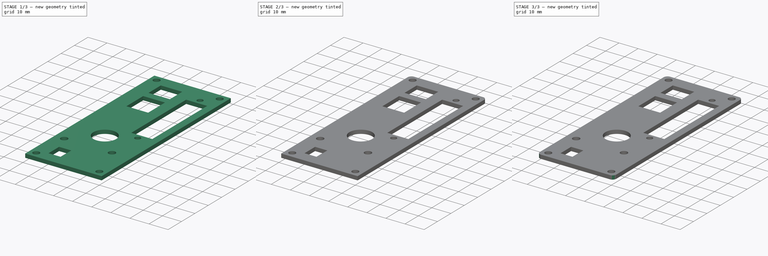
[diagram: build sequence overview — one tinted view per stage of 3, left to right]
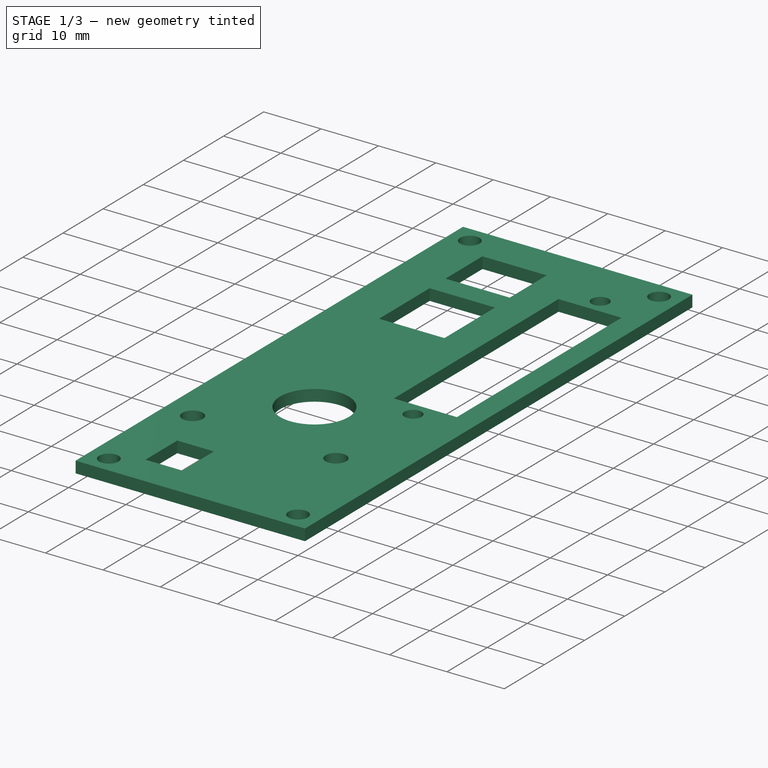
[diagram: stage 1 of 3 — iso view after this stage's code; geometry added in this stage tinted green]
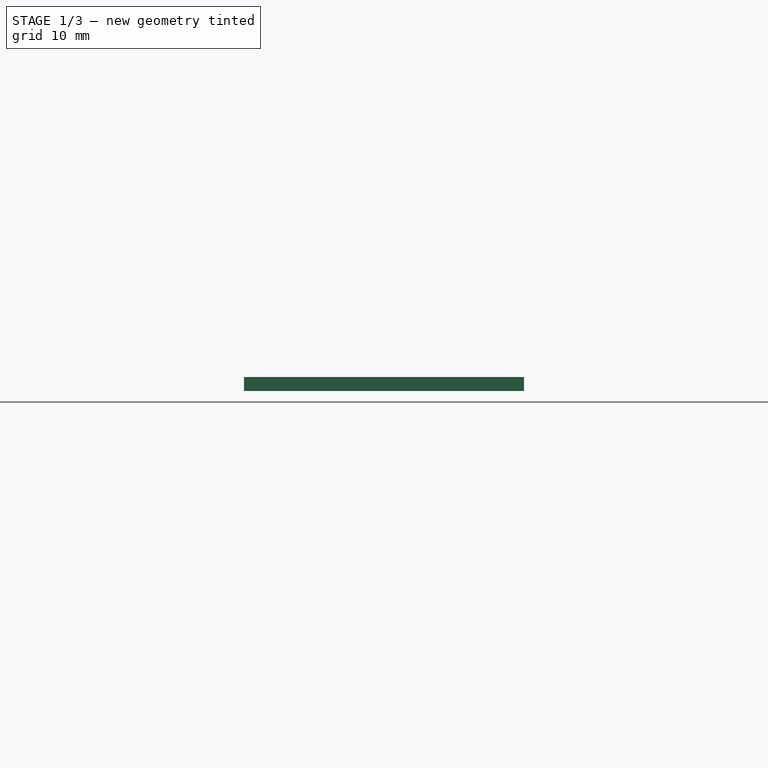
[diagram: stage 1 of 3 — front view after this stage's code; geometry added in this stage tinted green]
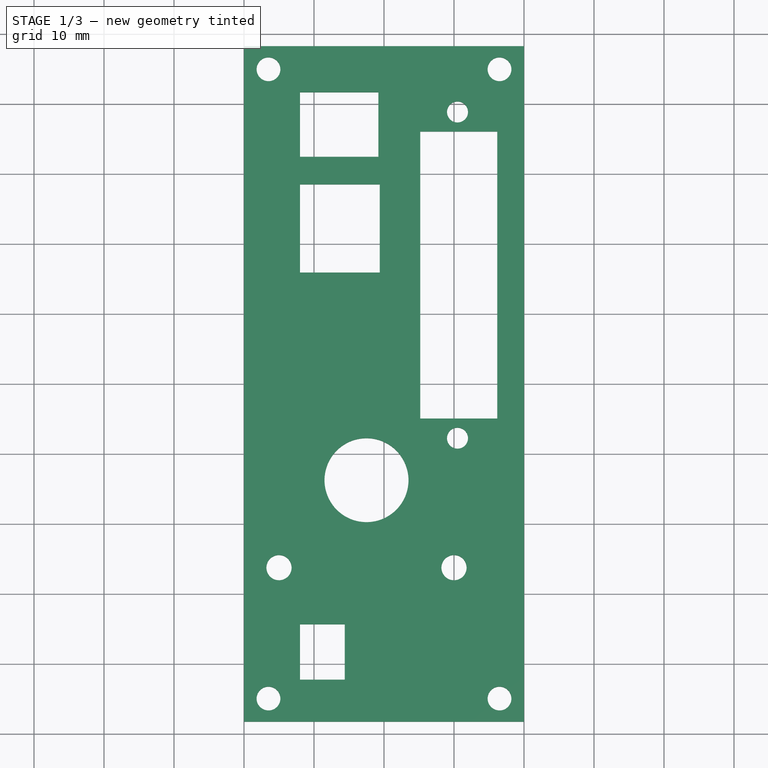
[diagram: stage 1 of 3 — top view after this stage's code; geometry added in this stage tinted green]
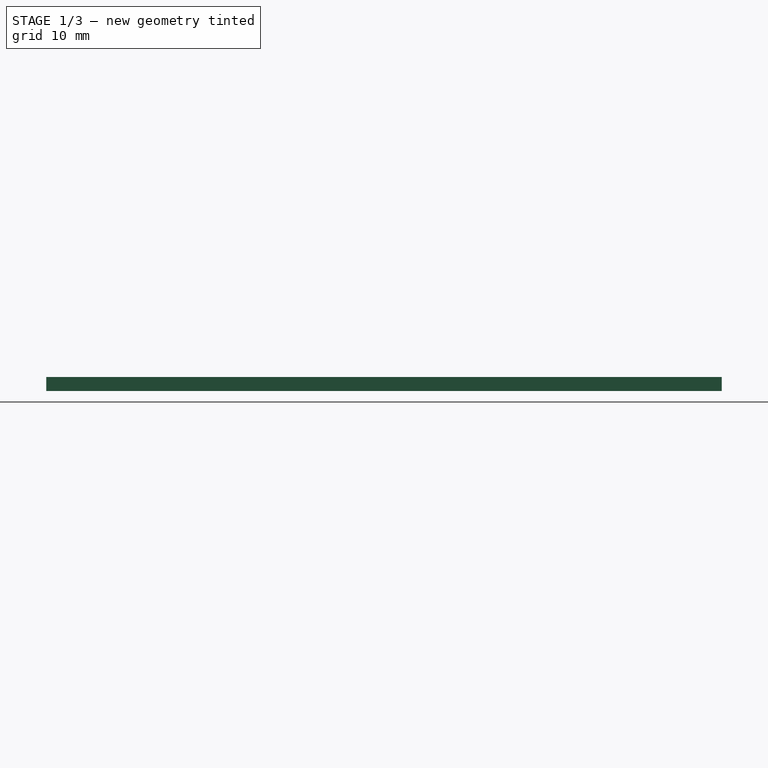
[diagram: stage 1 of 3 — right view after this stage's code; geometry added in this stage tinted green]
FCSTD DOCUMENT  (FreeCAD 0.18.4R)
Label: left_case
License: All rights reserved
LicenseURL: http://en.wikipedia.org/wiki/All_rights_reserved
objects: PartDesign::Fillet×4, Sketcher::SketchObject×2, PartDesign::Pad×1, PartDesign::Pocket×1, PartDesign::Body×1
note: 11 computed .brp shape members not serialized (recipe doc carries the construction recipe); baked Part::Feature solids carry a one-line shape summary decoded from their .brp

FEATURE [Sketcher::SketchObject] Sketch
  MapMode = 5
  Support = -> [XY_Plane]
  sketch-geometry (4):
    g0: LineSegment StartX=-20 StartY=48.25 StartZ=0 EndX=20 EndY=48.25 EndZ=0
    g1: LineSegment StartX=20 StartY=48.25 StartZ=0 EndX=20 EndY=-48.25 EndZ=0
    g2: LineSegment StartX=20 StartY=-48.25 StartZ=0 EndX=-20 EndY=-48.25 EndZ=0
    g3: LineSegment StartX=-20 StartY=-48.25 StartZ=0 EndX=-20 EndY=48.25 EndZ=0
  constraints (10):
    c: Coincident(g0,g1)
    c: Coincident(g1,g2)
    c: Coincident(g2,g3)
    c: Coincident(g3,g0)
    c: Horizontal(g2)
    c: Vertical(g1)
    c: DistanceX(g0,g0) = 40
    c: DistanceY(g3,g3) = 96.5
    c: Symmetric(g0,g0,g-2)
    c: Symmetric(g2,g0,g-1)
FEATURE [PartDesign::Pad] Pad
  Length = 2
  Length2 = 100
  Profile = -> Sketch
  Type = 0
FEATURE [Sketcher::SketchObject] Sketch001
  ExternalGeometry = -> [Pad]
  MapMode = 5
  Placement = pos=(0,0,2) rot=(0,0,1;0rad)
  Support = -> [Pad]
  sketch-geometry (25):
    g0: Circle CenterX=-16.5 CenterY=44.95 CenterZ=0 NormalX=0 NormalY=0 NormalZ=1 AngleXU=0 Radius=1.7
    g1: Circle CenterX=16.5 CenterY=44.95 CenterZ=0 NormalX=0 NormalY=0 NormalZ=1 AngleXU=0 Radius=1.7
    g2: Circle CenterX=-16.5 CenterY=-44.95 CenterZ=0 NormalX=0 NormalY=0 NormalZ=1 AngleXU=0 Radius=1.7
    g3: Circle CenterX=16.5 CenterY=-44.95 CenterZ=0 NormalX=0 NormalY=0 NormalZ=1 AngleXU=0 Radius=1.7
    g4: Circle CenterX=10.5 CenterY=38.85 CenterZ=0 NormalX=0 NormalY=0 NormalZ=1 AngleXU=0 Radius=1.5
    g5: Circle CenterX=10.5 CenterY=-7.75 CenterZ=0 NormalX=0 NormalY=0 NormalZ=1 AngleXU=0 Radius=1.5
    g6: LineSegment StartX=5.18 StartY=-4.95 StartZ=0 EndX=16.18 EndY=-4.95 EndZ=0
    g7: LineSegment StartX=16.18 StartY=-4.95 StartZ=0 EndX=16.18 EndY=36.05 EndZ=0
    g8: LineSegment StartX=16.18 StartY=36.05 StartZ=0 EndX=5.18 EndY=36.05 EndZ=0
    g9: LineSegment StartX=5.18 StartY=36.05 StartZ=0 EndX=5.18 EndY=-4.95 EndZ=0
    g10: LineSegment StartX=-12 StartY=32.4575 StartZ=0 EndX=-0.8 EndY=32.4575 EndZ=0
    g11: LineSegment StartX=-0.8 StartY=32.4575 StartZ=0 EndX=-0.8 EndY=41.6575 EndZ=0
    g12: LineSegment StartX=-0.8 StartY=41.6575 StartZ=0 EndX=-12 EndY=41.6575 EndZ=0
    g13: LineSegment StartX=-12 StartY=41.6575 StartZ=0 EndX=-12 EndY=32.4575 EndZ=0
    g14: LineSegment StartX=-12 StartY=15.9053 StartZ=0 EndX=-0.6 EndY=15.9053 EndZ=0
    g15: LineSegment StartX=-0.6 StartY=15.9053 StartZ=0 EndX=-0.6 EndY=28.5053 EndZ=0
    g16: LineSegment StartX=-0.6 StartY=28.5053 StartZ=0 EndX=-12 EndY=28.5053 EndZ=0
    g17: LineSegment StartX=-12 StartY=28.5053 StartZ=0 EndX=-12 EndY=15.9053 EndZ=0
    g18: Circle CenterX=-2.5 CenterY=-13.75 CenterZ=0 NormalX=0 NormalY=0 NormalZ=1 AngleXU=0 Radius=6
    g19: LineSegment StartX=-12 StartY=-42.25 StartZ=0 EndX=-5.6 EndY=-42.25 EndZ=0
    g20: LineSegment StartX=-5.6 StartY=-42.25 StartZ=0 EndX=-5.6 EndY=-34.35 EndZ=0
    g21: LineSegment StartX=-5.6 StartY=-34.35 StartZ=0 EndX=-12 EndY=-34.35 EndZ=0
    g22: LineSegment StartX=-12 StartY=-34.35 StartZ=0 EndX=-12 EndY=-42.25 EndZ=0
    g23: Circle CenterX=-15 CenterY=-26.25 CenterZ=0 NormalX=0 NormalY=0 NormalZ=1 AngleXU=0 Radius=1.8
    g24: Circle CenterX=10 CenterY=-26.25 CenterZ=0 NormalX=0 NormalY=0 NormalZ=1 AngleXU=0 Radius=1.8
  constraints (76):
    c: Distance(g0,g-3) = 3.3
    c: Distance(g0,g-4) = 3.5
    c: Radius(g0) = 1.7
    c: Radius(g1) = 1.7
    c: Radius(g3) = 1.7
    c: Radius(g2) = 1.7
    c: Distance(g2,g-4) = 3.5
    c: Distance(g2,g-6) = 3.3
    c: Distance(g3,g-5) = 3.5
    c: Distance(g3,g-6) = 3.3
    c: Distance(g1,g-5) = 3.5
    c: Distance(g-3) = 40
    c: Distance(g-3) = 40
    c: Distance(g1,g-3) = 3.3
    c: Radius(g4) = 1.5
    c: Radius(g5) = 1.5
    c: Coincident(g6,g7)
    c: Coincident(g7,g8)
    c: Coincident(g8,g9)
    c: Coincident(g9,g6)
    c: Horizontal(g6)
    c: DistanceY(g9,g9) = 41
    c: DistanceX(g8,g8) = 11
    c: Equal(g8,g6)
    c: Perpendicular(g9,g8)
    c: Distance(g5,g6) = 2.8
    c: Distance(g7,g-5) = 3.82
    c: Coincident(g10,g11)
    c: Coincident(g11,g12)
    c: Coincident(g12,g13)
    c: Coincident(g13,g10)
    c: Horizontal(g10)
    c: Horizontal(g12)
    c: Vertical(g11)
    c: Vertical(g13)
    c: Coincident(g14,g15)
    c: Coincident(g15,g16)
    c: Coincident(g16,g17)
    c: Coincident(g17,g14)
    c: Horizontal(g14)
    c: Horizontal(g16)
    c: Vertical(g15)
    c: Vertical(g17)
    c: DistanceX(g12,g12) = 11.2
    c: DistanceY(g11,g11) = 9.2
    c: DistanceX(g16,g16) = 11.4
    c: DistanceY(g15,g15) = 12.6
    c: Distance(g10,g-4) = 8
    c: Distance(g16,g-4) = 8
    c: Distance(g18,g-6) = 34.5
    c: Distance(g18,g-4) = 17.5
    c: Coincident(g19,g20)
    c: Coincident(g20,g21)
    c: Coincident(g21,g22)
    c: Coincident(g22,g19)
    c: Horizontal(g19)
    c: Horizontal(g21)
    c: Vertical(g20)
    c: Vertical(g22)
    c: Distance(g19,g-6) = 6
    c: Distance(g21,g-4) = 8
    c: DistanceX(g21,g21) = 6.4
    c: DistanceY(g20,g20) = 7.9
    c: Radius(g18) = 6
    c: Distance(g-3) = 40
    c: Distance(g4,g-3) = 9.4
    c: Distance(g4,g9) = 5.32
    c: Distance(g5,g9) = 5.32
    c: Horizontal(g23,g24)
    c: Radius(g23) = 1.8
    c: Radius(g24) = 1.8
    c: Distance(g23,g-4) = 5
    c: Distance(g23,g24) = 25
    c: Distance(g24,g-6) = 22
    c: Distance(g4,g8) = 2.8
    c: Distance(g5,g4) = 46.6
FEATURE [PartDesign::Pocket] Pocket
  BaseFeature = -> Pad
  Length = 5
  Length2 = 100
  Profile = -> Sketch001
  Type = 0
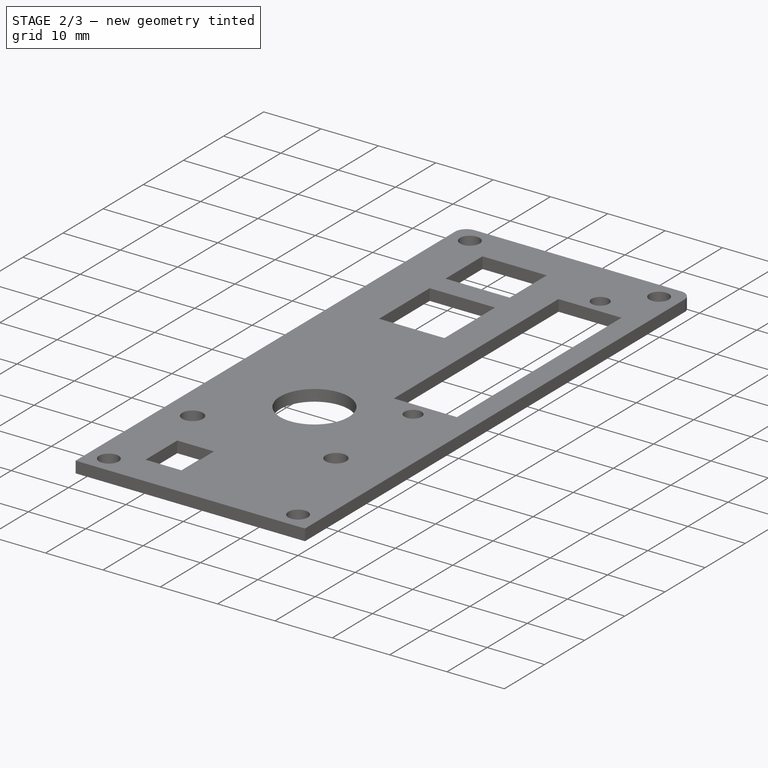
[diagram: stage 2 of 3 — iso view after this stage's code; geometry added in this stage tinted green]
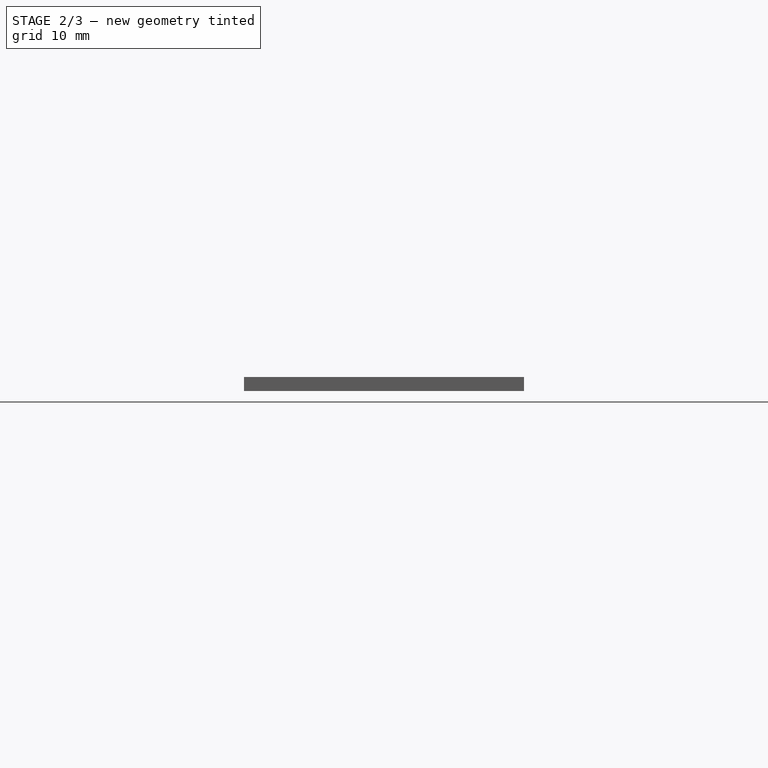
[diagram: stage 2 of 3 — front view after this stage's code; geometry added in this stage tinted green]
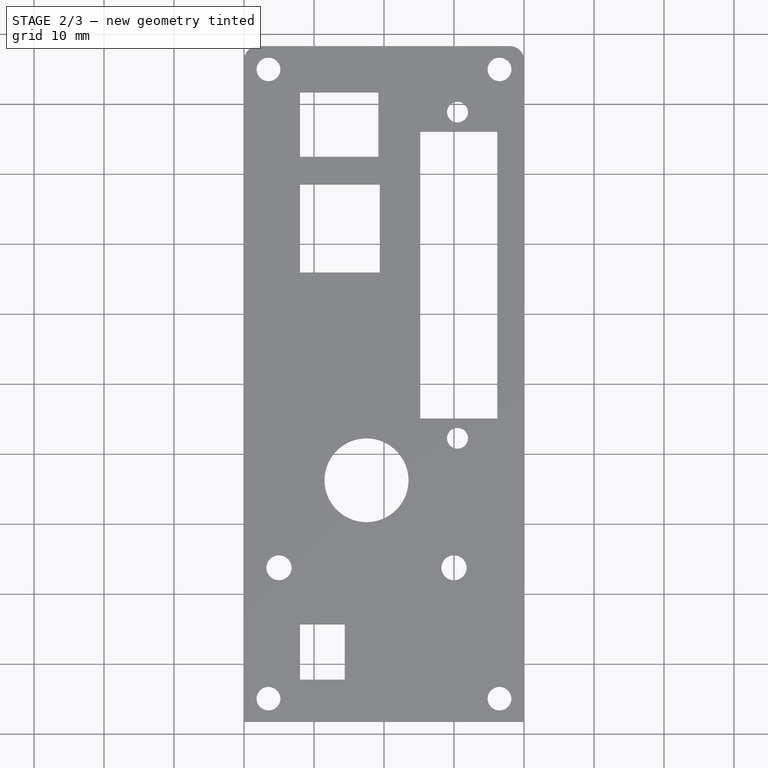
[diagram: stage 2 of 3 — top view after this stage's code; geometry added in this stage tinted green]
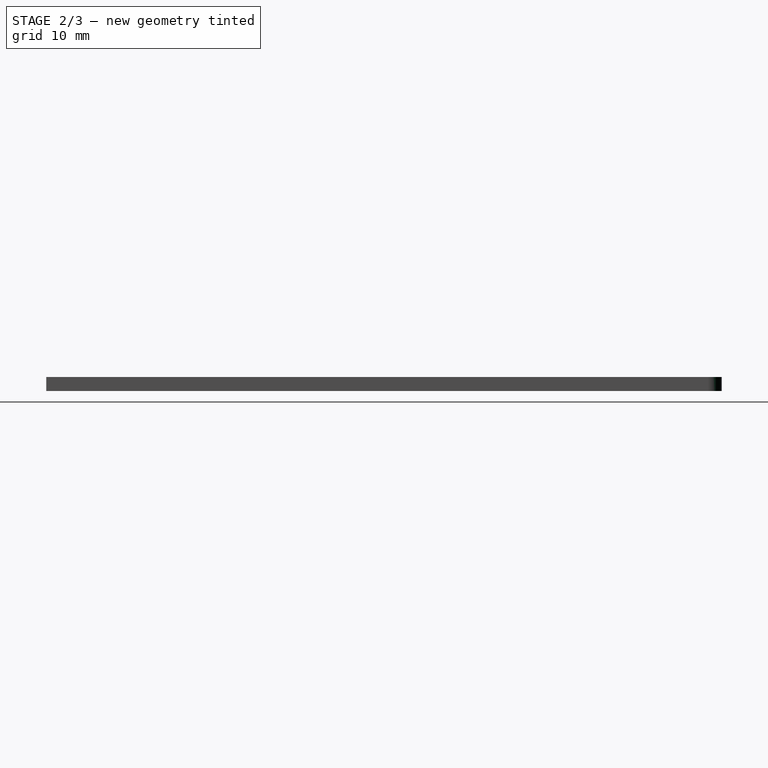
[diagram: stage 2 of 3 — right view after this stage's code; geometry added in this stage tinted green]
FEATURE [PartDesign::Fillet] Fillet
  Base = -> Pocket [Edge1]
  BaseFeature = -> Pocket
  Radius = 2
FEATURE [PartDesign::Fillet] Fillet001
  Base = -> Fillet [Edge3]
  BaseFeature = -> Fillet
  Radius = 2
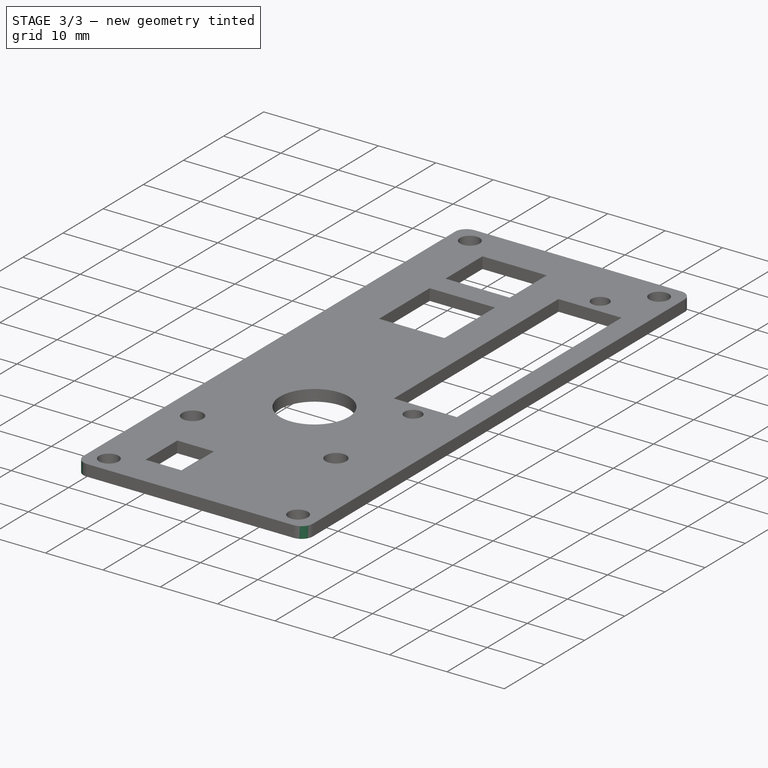
[diagram: stage 3 of 3 — iso view after this stage's code; geometry added in this stage tinted green]
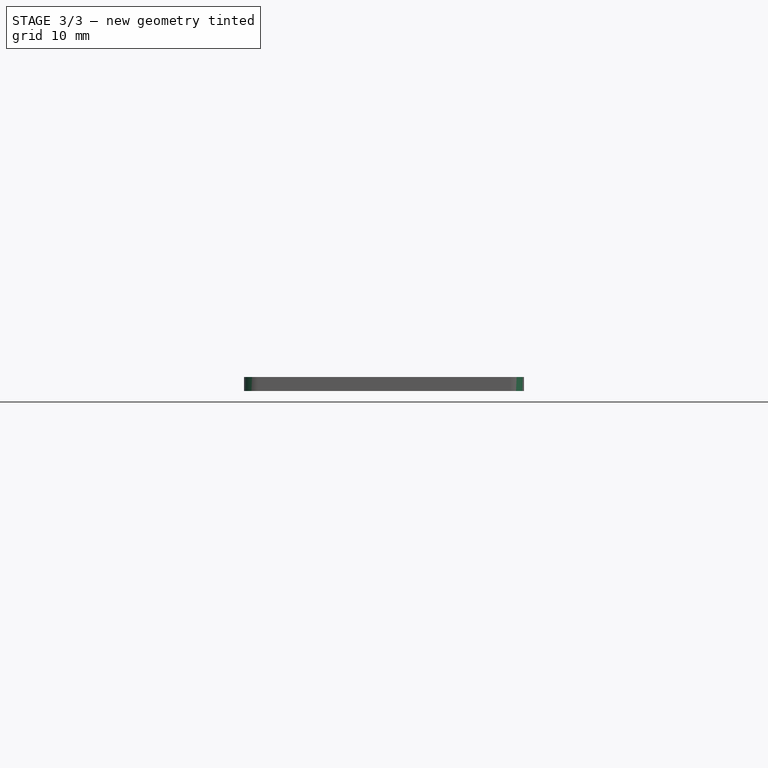
[diagram: stage 3 of 3 — front view after this stage's code; geometry added in this stage tinted green]
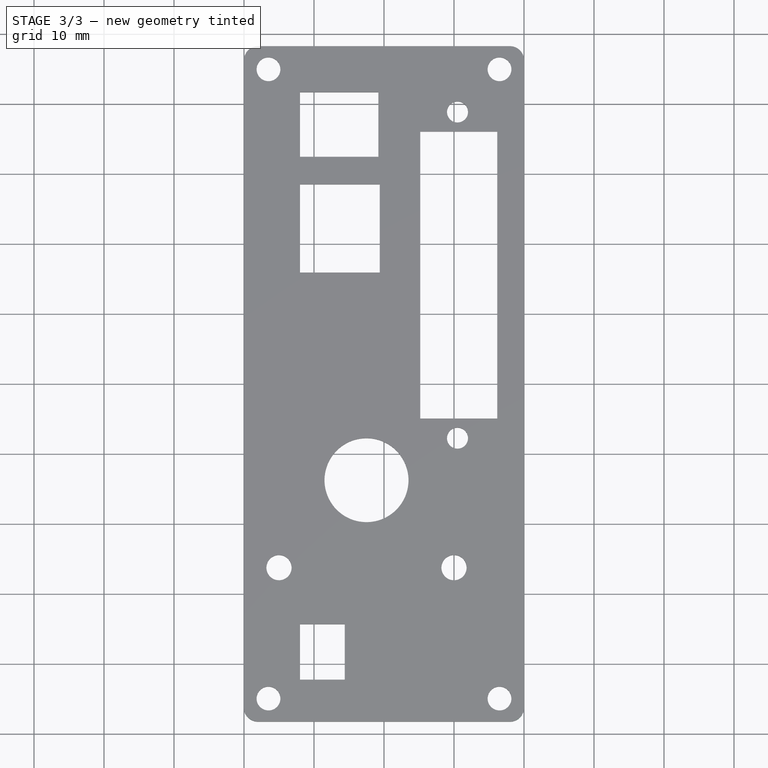
[diagram: stage 3 of 3 — top view after this stage's code; geometry added in this stage tinted green]
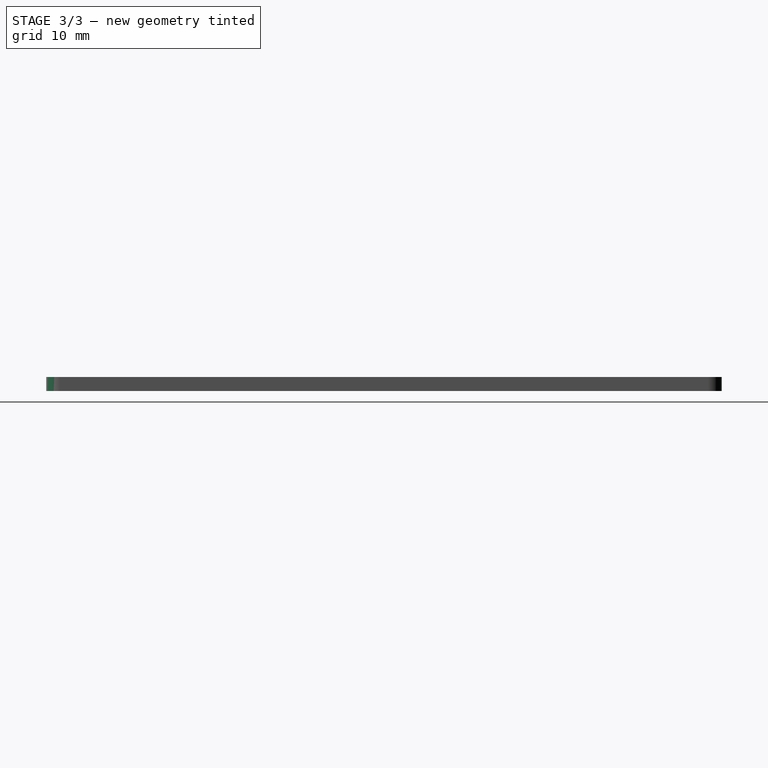
[diagram: stage 3 of 3 — right view after this stage's code; geometry added in this stage tinted green]
FEATURE [PartDesign::Fillet] Fillet002
  Base = -> Fillet001 [Edge68]
  BaseFeature = -> Fillet001
  Radius = 2
FEATURE [PartDesign::Fillet] Fillet003
  Base = -> Fillet002 [Edge40]
  BaseFeature = -> Fillet002
  Radius = 2
FEATURE [PartDesign::Body] Body
  Group = -> [Sketch,Pad,Sketch001,Pocket,Fillet,Fillet001,Fillet002,Fillet003]
  Origin = -> Origin
  Tip = -> Fillet003
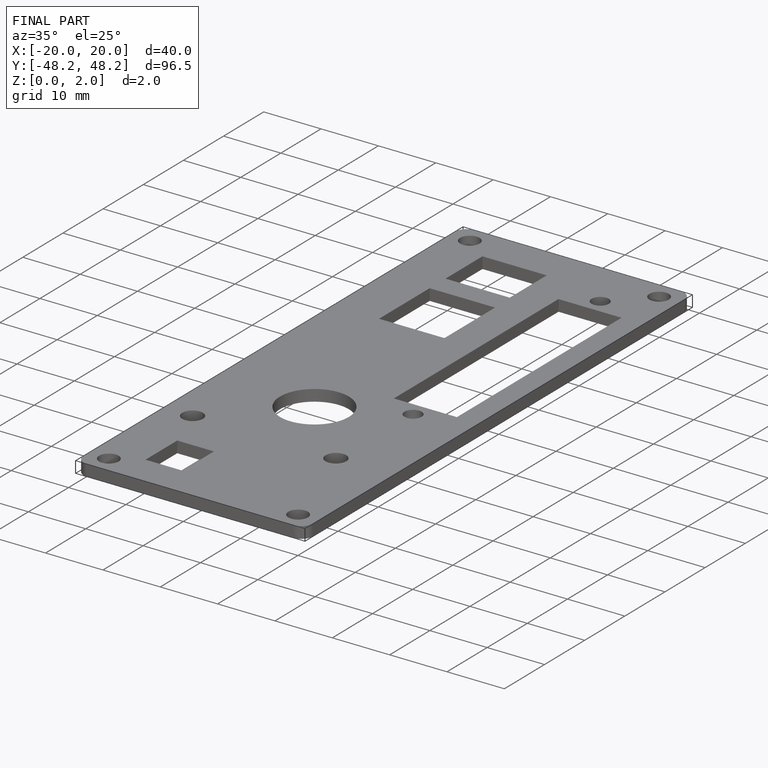
[diagram: finished part — iso view with bounding-box wireframe]
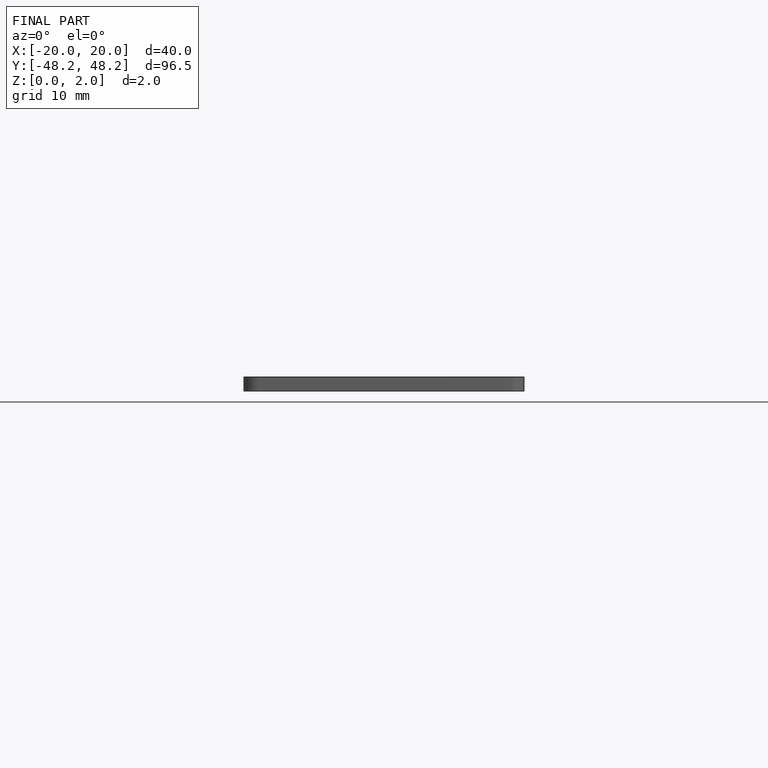
[diagram: finished part — front view with bounding-box wireframe]
